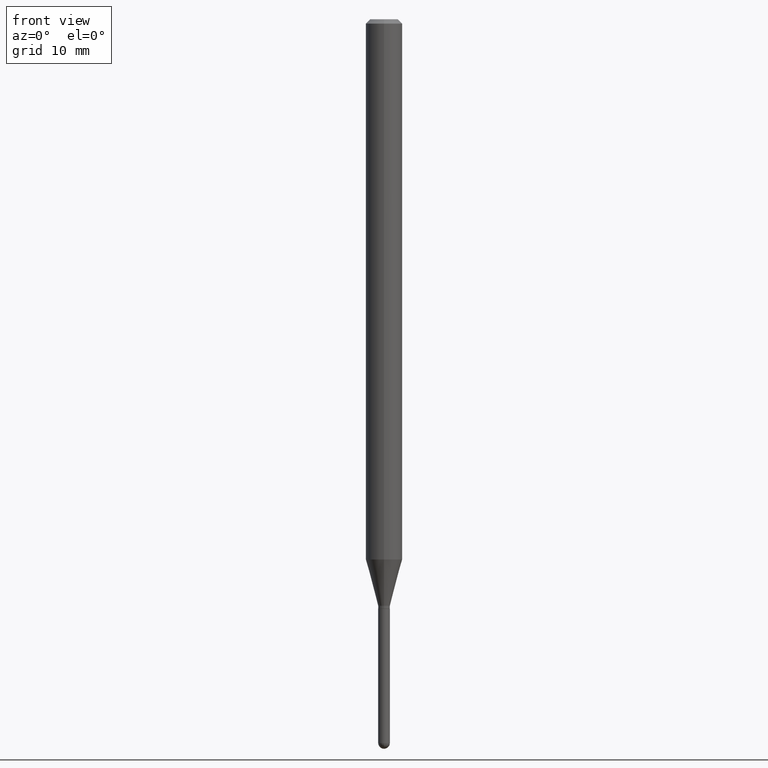
[diagram: clean part render]
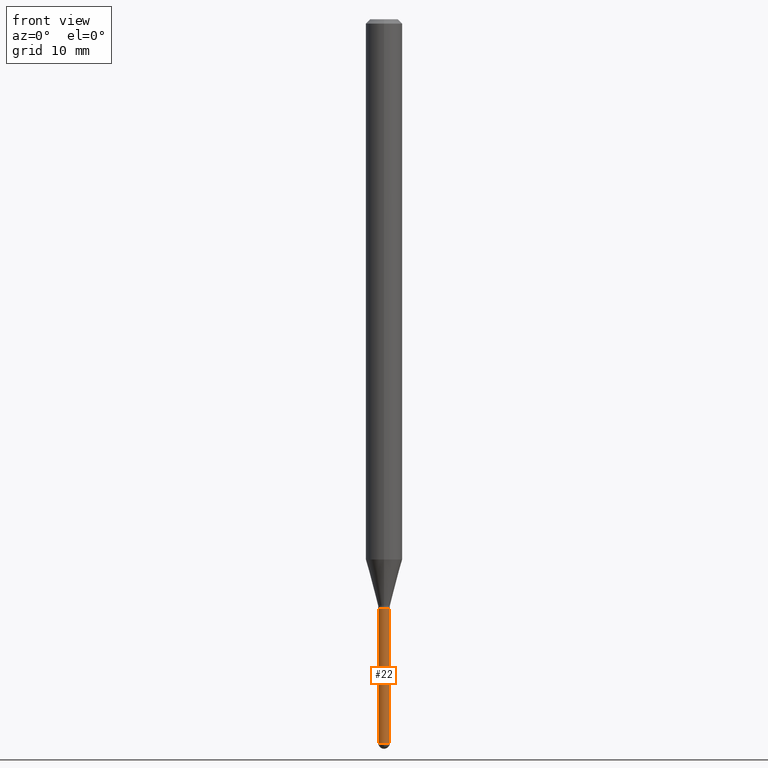
[diagram: same view with one face highlighted and labeled with its STEP entity id]
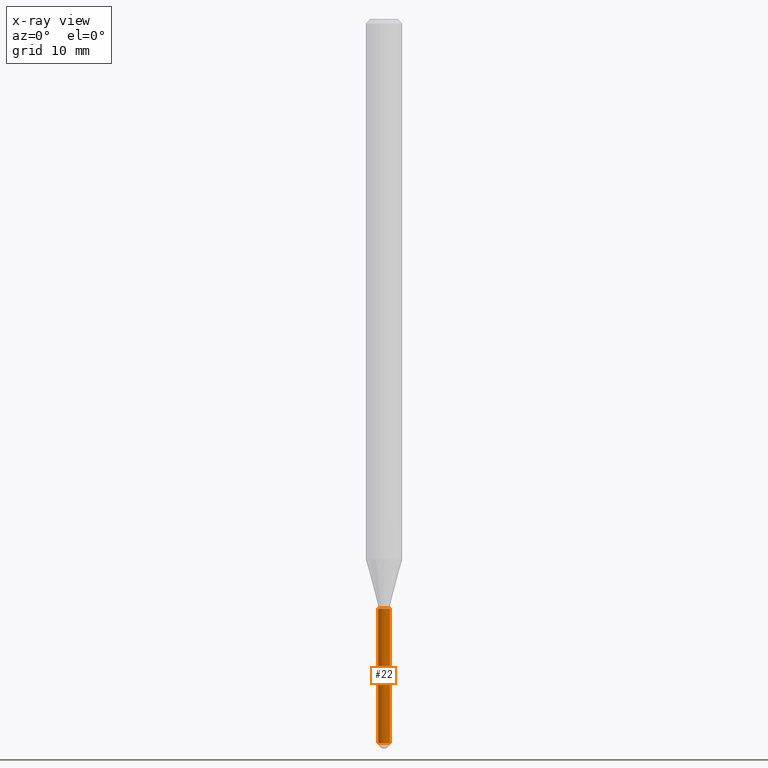
[diagram: x-ray of the same camera — body ghosted, the highlighted face saturated]
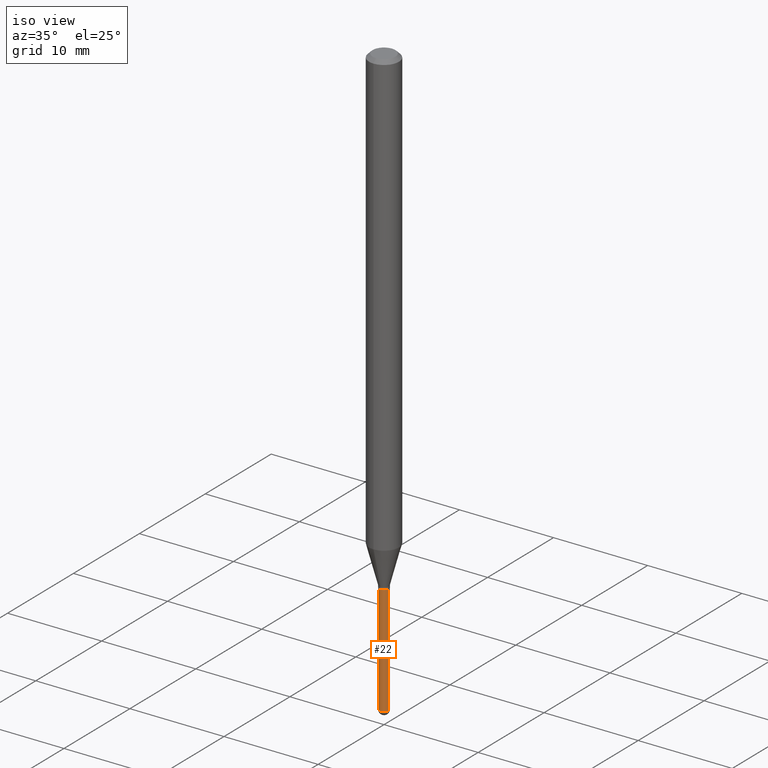
[diagram: same view with one face highlighted and labeled with its STEP entity id]
A machine part, front view. The second image highlights one B-rep face of the part: STEP entity #22.
The next image is the same camera in x-ray: the body ghosted, the highlighted face saturated — about 0% of this face is hidden behind the body in this view.
A second angle (iso view) of the same face is appended — the face is thin or edge-on in the first view.
In plain terms, the highlighted cylindrical surface (edge-blend (fillet) strip) has radius 0.508 mm, axis along (-0, 0, 1).
Its self-contained STEP definition (entity closure, byte-faithful):
#2 = LINE ( 'NONE', #361, #421 ) ;
#15 = DIRECTION ( 'NONE',  ( 1.000000000000000000, -6.982962677686235945E-15, 0.000000000000000000 ) ) ;
#16 = CIRCLE ( 'NONE', #23, 0.02000000000000000042 ) ;
#20 = VERTEX_POINT ( 'NONE', #322 ) ;
#21 = CARTESIAN_POINT ( 'NONE',  ( 0.02000000000000000042, -7.995492265950803467E-15, -2.480000000000000426 ) ) ;
#22 = ADVANCED_FACE ( 'NONE', ( #435 ), #432, .T. ) ;
#23 = AXIS2_PLACEMENT_3D ( 'NONE', #115, #169, #405 ) ;
#33 = CIRCLE ( 'NONE', #107, 0.02000000000000000042 ) ;
#43 = DIRECTION ( 'NONE',  ( -2.445468806185136597E-29, 3.491481338843145583E-15, 1.000000000000000000 ) ) ;
#48 = CARTESIAN_POINT ( 'NONE',  ( -0.02000000000000000042, -7.713724465245058285E-15, -2.480000000000000426 ) ) ;
#64 = ORIENTED_EDGE ( 'NONE', *, *, #343, .T. ) ;
#87 = ORIENTED_EDGE ( 'NONE', *, *, #225, .T. ) ;
#107 = AXIS2_PLACEMENT_3D ( 'NONE', #136, #454, #200 ) ;
#109 = ORIENTED_EDGE ( 'NONE', *, *, #199, .F. ) ;
#115 = CARTESIAN_POINT ( 'NONE',  ( 6.064762639339139522E-29, -8.658873720331001644E-15, -2.480000000000000426 ) ) ;
#125 = EDGE_CURVE ( 'NONE', #20, #426, #276, .T. ) ;
#136 = CARTESIAN_POINT ( 'NONE',  ( 4.939846988493976284E-29, -7.052792304463154463E-15, -2.020000000000000018 ) ) ;
#149 = VERTEX_POINT ( 'NONE', #48 ) ;
#169 = DIRECTION ( 'NONE',  ( -2.445468806185136597E-29, 3.491481338843145583E-15, 1.000000000000000000 ) ) ;
#170 = VECTOR ( 'NONE', #363, 39.37007874015748143 ) ;
#199 = EDGE_CURVE ( 'NONE', #264, #455, #33, .T. ) ;
#200 = DIRECTION ( 'NONE',  ( 1.000000000000000000, -6.982962677686284065E-15, 0.000000000000000000 ) ) ;
#217 = CARTESIAN_POINT ( 'NONE',  ( -0.02000000000000000042, 1.421085471520200401E-16, -9.837870180509812545E-31 ) ) ;
#218 = AXIS2_PLACEMENT_3D ( 'NONE', #408, #43, #15 ) ;
#225 = EDGE_CURVE ( 'NONE', #426, #455, #2, .T. ) ;
#253 = CARTESIAN_POINT ( 'NONE',  ( 0.02000000000000000042, -7.192451558016880271E-15, -2.020000000000000018 ) ) ;
#264 = VERTEX_POINT ( 'NONE', #286 ) ;
#266 = EDGE_LOOP ( 'NONE', ( #337, #64, #307, #87, #109 ) ) ;
#276 = CIRCLE ( 'NONE', #218, 0.02000000000000000042 ) ;
#286 = CARTESIAN_POINT ( 'NONE',  ( -0.02000000000000000042, -7.713724465245058285E-15, -2.020000000000000018 ) ) ;
#307 = ORIENTED_EDGE ( 'NONE', *, *, #125, .T. ) ;
#308 = DIRECTION ( 'NONE',  ( 1.000000000000000000, -6.982962677686265922E-15, 4.876176775795935793E-29 ) ) ;
#322 = CARTESIAN_POINT ( 'NONE',  ( -1.421085471519590267E-16, -0.02000000000000860811, -2.480000000000000426 ) ) ;
#337 = ORIENTED_EDGE ( 'NONE', *, *, #449, .F. ) ;
#343 = EDGE_CURVE ( 'NONE', #149, #20, #16, .T. ) ;
#360 = AXIS2_PLACEMENT_3D ( 'NONE', #473, #396, #308 ) ;
#361 = CARTESIAN_POINT ( 'NONE',  ( 0.02000000000000000042, -1.396592535537253145E-16, 9.752353551591871936E-31 ) ) ;
#363 = DIRECTION ( 'NONE',  ( -2.445468806185136877E-29, 3.491481338843145188E-15, 1.000000000000000000 ) ) ;
#396 = DIRECTION ( 'NONE',  ( -2.445468806185136597E-29, 3.491481338843145583E-15, 1.000000000000000000 ) ) ;
#405 = DIRECTION ( 'NONE',  ( 1.000000000000000000, -6.982962677686235945E-15, 0.000000000000000000 ) ) ;
#408 = CARTESIAN_POINT ( 'NONE',  ( 6.064762639339139522E-29, -8.658873720331001644E-15, -2.480000000000000426 ) ) ;
#421 = VECTOR ( 'NONE', #448, 39.37007874015748143 ) ;
#426 = VERTEX_POINT ( 'NONE', #21 ) ;
#432 = CYLINDRICAL_SURFACE ( 'NONE', #360, 0.02000000000000000042 ) ;
#435 = FACE_OUTER_BOUND ( 'NONE', #266, .T. ) ;
#448 = DIRECTION ( 'NONE',  ( -2.445468806185136877E-29, 3.491481338843145188E-15, 1.000000000000000000 ) ) ;
#449 = EDGE_CURVE ( 'NONE', #149, #264, #462, .T. ) ;
#454 = DIRECTION ( 'NONE',  ( -2.445468806185136597E-29, 3.491481338843145583E-15, 1.000000000000000000 ) ) ;
#455 = VERTEX_POINT ( 'NONE', #253 ) ;
#462 = LINE ( 'NONE', #217, #170 ) ;
#473 = CARTESIAN_POINT ( 'NONE',  ( 0.000000000000000000, 0.000000000000000000, 0.000000000000000000 ) ) ;